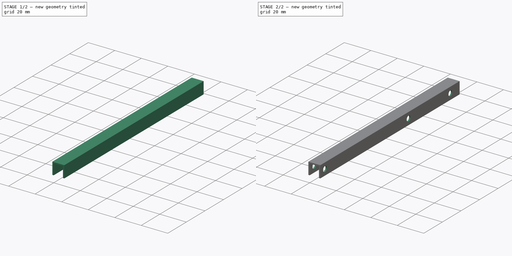
[diagram: build sequence overview — one tinted view per stage of 2, left to right]
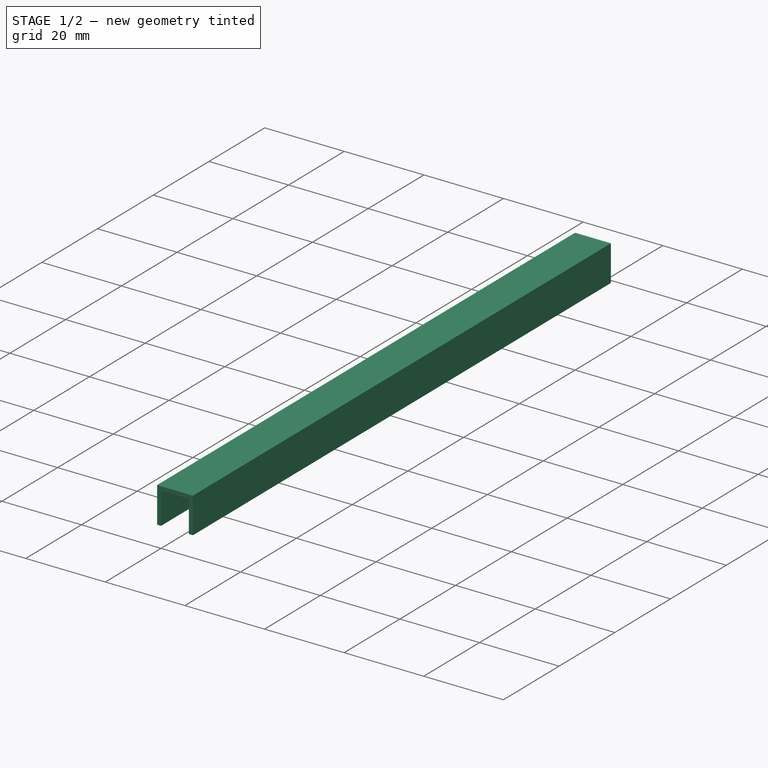
[diagram: stage 1 of 2 — iso view after this stage's code; geometry added in this stage tinted green]
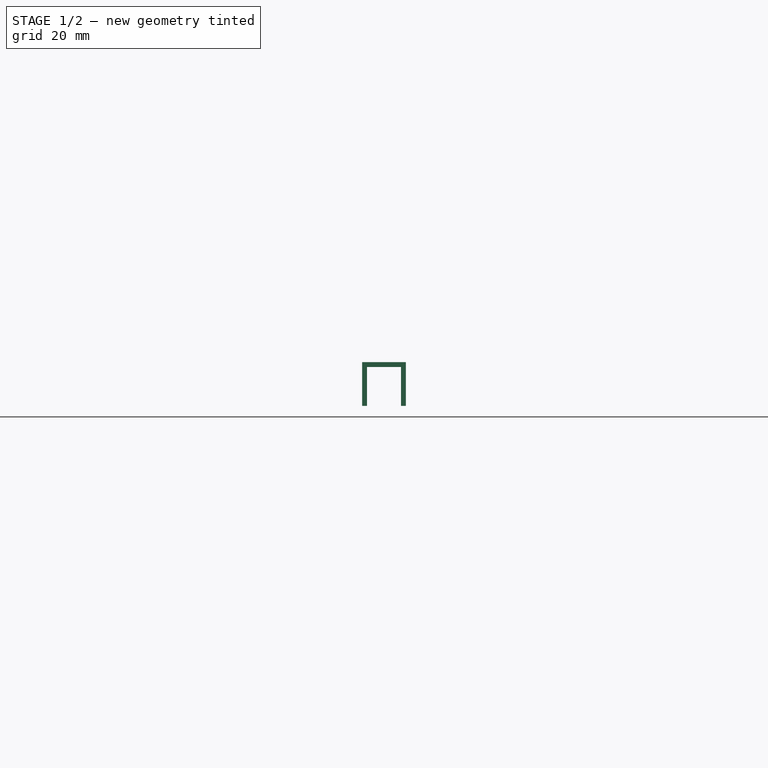
[diagram: stage 1 of 2 — front view after this stage's code; geometry added in this stage tinted green]
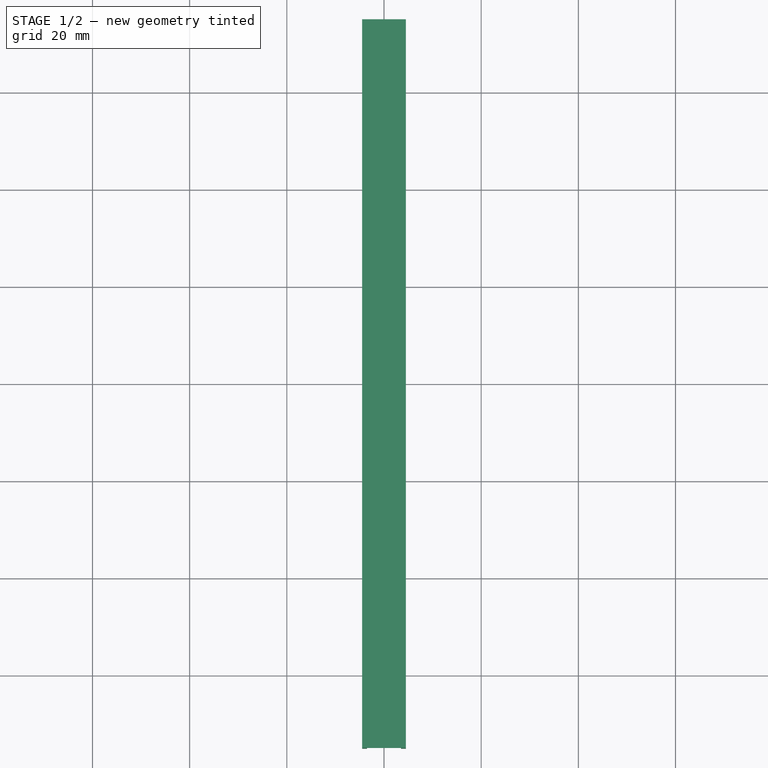
[diagram: stage 1 of 2 — top view after this stage's code; geometry added in this stage tinted green]
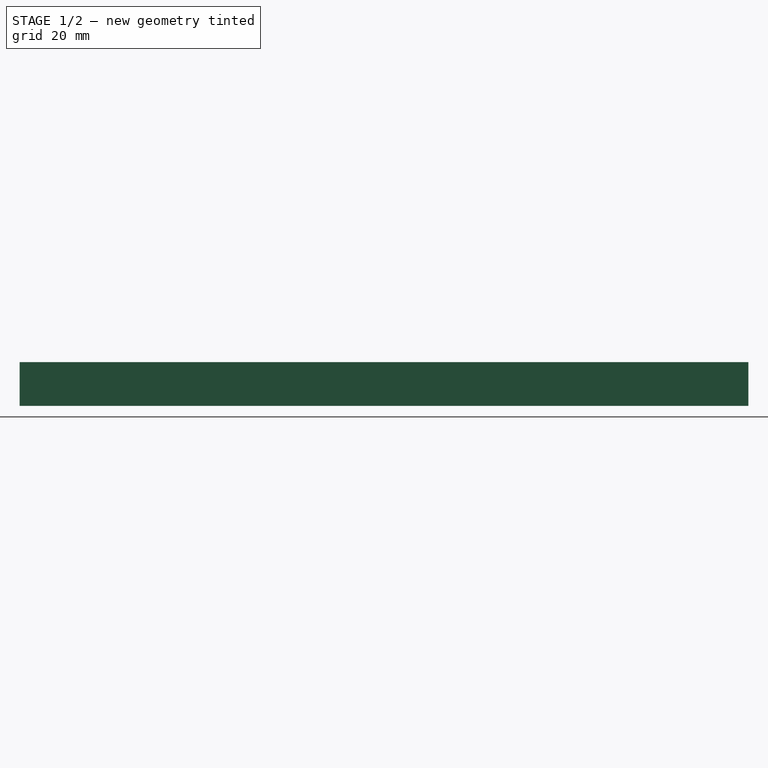
[diagram: stage 1 of 2 — right view after this stage's code; geometry added in this stage tinted green]
FCSTD DOCUMENT  (FreeCAD 0.15R4671 (Git))
Label: SuspensionWheelConnection
License: All rights reserved
LicenseURL: http://en.wikipedia.org/wiki/All_rights_reserved
objects: Drawing::FeatureViewPart×4, Sketcher::SketchObject×2, PartDesign::Pad×1, PartDesign::Pocket×1, Drawing::FeaturePage×1
note: 6 computed .brp shape members not serialized (recipe doc carries the construction recipe); baked Part::Feature solids carry a one-line shape summary decoded from their .brp

FEATURE [Sketcher::SketchObject] Sketch
  Placement = pos=(0,0,0) rot=(1,0,0;1.5708rad)
  sketch-geometry (8):
    g0: LineSegment StartX=-3.5 StartY=0 StartZ=0 EndX=-3.5 EndY=8 EndZ=0
    g1: LineSegment StartX=-3.5 StartY=8 StartZ=0 EndX=3.5 EndY=8 EndZ=0
    g2: LineSegment StartX=3.5 StartY=8 StartZ=0 EndX=3.5 EndY=0 EndZ=0
    g3: LineSegment StartX=3.5 StartY=0 StartZ=0 EndX=4.5 EndY=0 EndZ=0
    g4: LineSegment StartX=4.5 StartY=0 StartZ=0 EndX=4.5 EndY=9 EndZ=0
    g5: LineSegment StartX=4.5 StartY=9 StartZ=0 EndX=-4.5 EndY=9 EndZ=0
    g6: LineSegment StartX=-4.5 StartY=9 StartZ=0 EndX=-4.5 EndY=0 EndZ=0
    g7: LineSegment StartX=-4.5 StartY=0 StartZ=0 EndX=-3.5 EndY=0 EndZ=0
  constraints (24):
    c: Vertical(g0)
    c: Coincident(g0,g1)
    c: Coincident(g1,g2)
    c: Vertical(g2)
    c: Coincident(g2,g3)
    c: Coincident(g3,g4)
    c: Coincident(g4,g5)
    c: Coincident(g5,g6)
    c: Vertical(g6)
    c: PointOnObject(g3,g-1)
    c: PointOnObject(g2,g-1)
    c: PointOnObject(g7,g-1)
    c: PointOnObject(g7,g-1)
    c: Coincident(g6,g7)
    c: Coincident(g7,g0)
    c: Equal(g7,g3)
    c: Equal(g6,g4)
    c: Symmetric(g4,g5,g-2)
    c: Horizontal(g5)
    c: Horizontal(g1)
    c: DistanceY(g1,g4) = 1
    c: DistanceX(g3) = 1
    c: DistanceX(g5) = -9
    c: DistanceY(g6) = -9
FEATURE [PartDesign::Pad] Pad
  Length = 150
  Length2 = 100
  Midplane = true
  Placement = pos=(0,0,0) rot=(1,0,0;1.5708rad)
  Sketch = -> Sketch
  Type = 0
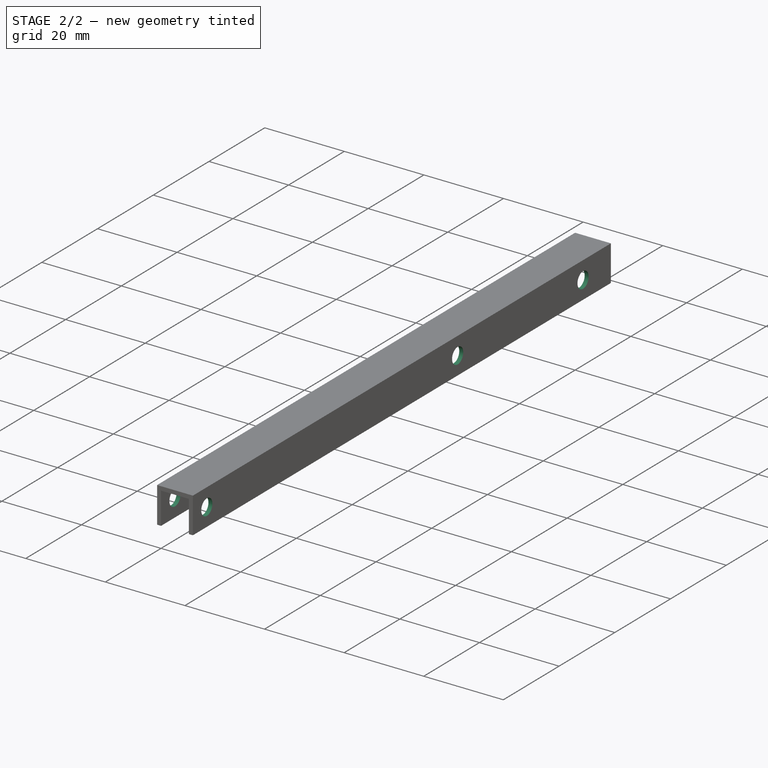
[diagram: stage 2 of 2 — iso view after this stage's code; geometry added in this stage tinted green]
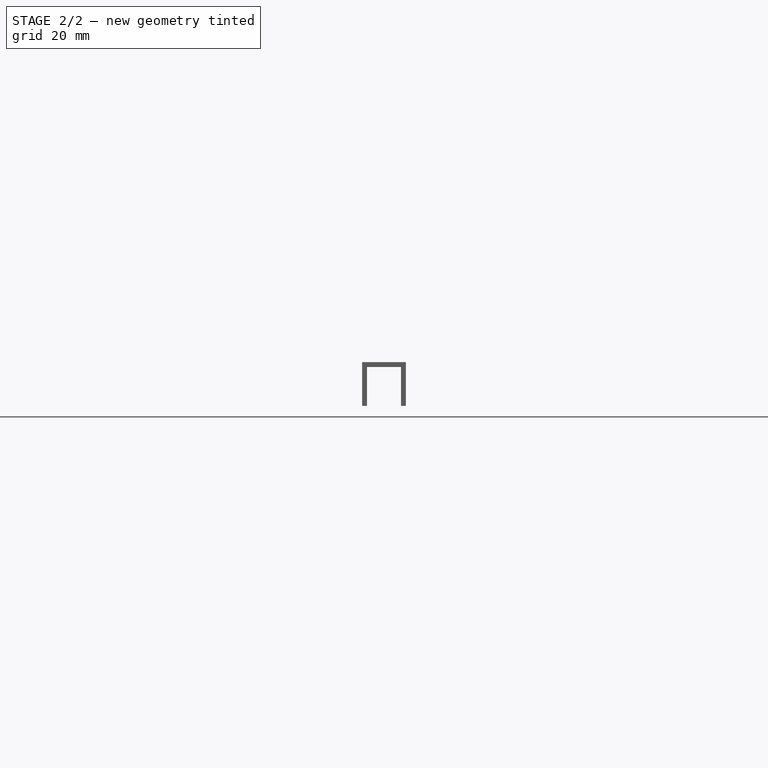
[diagram: stage 2 of 2 — front view after this stage's code; geometry added in this stage tinted green]
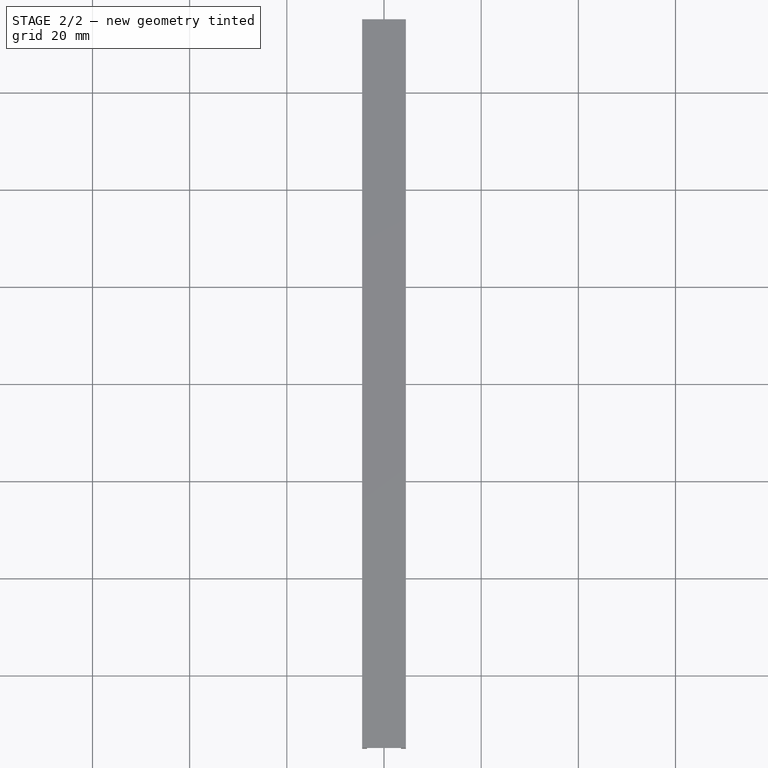
[diagram: stage 2 of 2 — top view after this stage's code; geometry added in this stage tinted green]
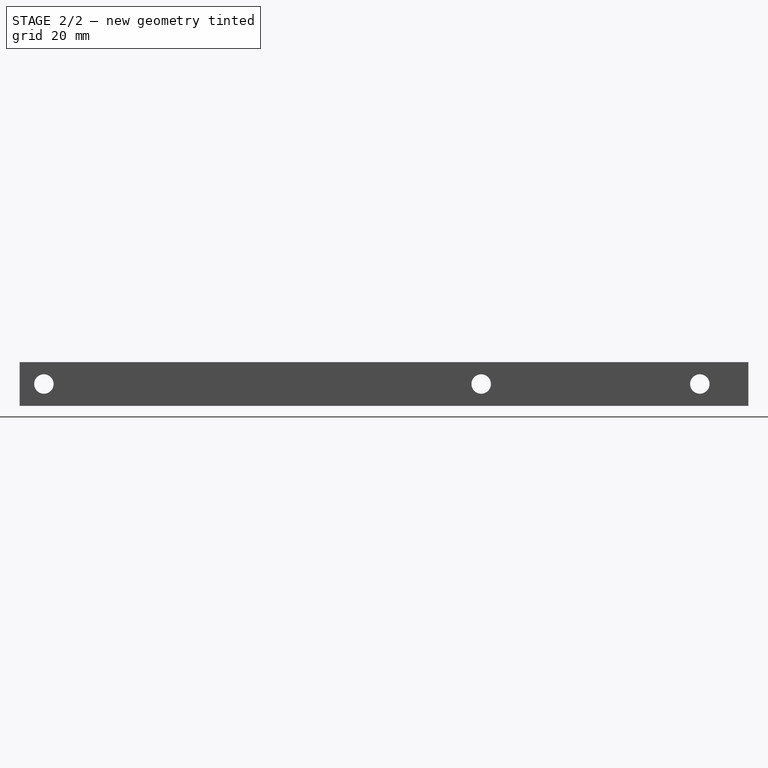
[diagram: stage 2 of 2 — right view after this stage's code; geometry added in this stage tinted green]
FEATURE [Sketcher::SketchObject] Sketch001
  Placement = pos=(4.5,0,0) rot=(0.707107,0,0.707107;3.14159rad)
  Support = -> Pad [Face5]
  sketch-geometry (3):
    g0: Circle CenterX=4.5 CenterY=70 CenterZ=0 NormalX=0 NormalY=0 NormalZ=1 Radius=2
    g1: Circle CenterX=4.5 CenterY=-65 CenterZ=0 NormalX=0 NormalY=0 NormalZ=1 Radius=2
    g2: Circle CenterX=4.5 CenterY=-20 CenterZ=0 NormalX=0 NormalY=0 NormalZ=1 Radius=2
  constraints (9):
    c: DistanceY(g-1,g0) = 70
    c: Radius(g0) = 2
    c: DistanceX(g-1,g0) = 4.5
    c: DistanceY(g-1,g1) = -65
    c: DistanceX(g-1,g1) = 4.5
    c: Equal(g1,g0)
    c: Equal(g2,g1)
    c: DistanceX(g-1,g2) = 4.5
    c: DistanceY(g2,g1) = -45
FEATURE [PartDesign::Pocket] Pocket  label="ConnectionWheelSuspension"
  Length = 5
  Placement = pos=(0,0,0) rot=(1,0,0;1.5708rad)
  Sketch = -> Sketch001
  Type = 1
FEATURE [Drawing::FeatureViewPart] Ortho  label="Ortho_0_0"
  Direction = (1,0,0)
  HiddenWidth = 0.15
  LineWidth = 0.35
  Rotation = -90
  ShowHiddenLines = false
  ShowSmoothLines = false
  Source = -> Pocket
  Tolerance = 0.05
  ViewResult = <g id="Ortho_0_0"\n   transform="rotate(-90,131,110) translate(131,110) scale(1,1)"\n  >\n<g   stroke="rgb(0, 0, 0)"\n   stroke-width="0.35"\n   stroke-linecap="butt"\n   stroke-linejoin="miter"\n   fill="none"\n   transform="scale(1,-1)"\n  >\n<path id= "1" d=" M -6.66134e-14 -75 L 6.66134e-14 75 " />\n<path id= "2" d=" M 6.66134e-14 75 L 8 75 " />\n<circle cx ="4.5" cy ="-20" r ="2" /><path id= "4" d=" M -6.66134e-14 -75 L 9 -75 " />\n<path id= "5" d=" M 6.66134e-14 75 L 9 75 " />\n<path id= "6" d=" M -6.66134e-14 -75 L 6.66134e-14 75 " />\n<path id= "7" d=" M 9 -75 L 9 75 " />\n<circle cx ="4.5" cy ="-65" r ="2" /><circle cx ="4.5" cy ="-20" r ="2" /><circle cx ="4.5" cy ="70" r ="2" /></g>\n</g>
  Visible = true
  X = 131
  Y = 110
FEATURE [Drawing::FeatureViewPart] Ortho001  label="Ortho_1_0"
  Direction = (0,1,0)
  HiddenWidth = 0.15
  LineWidth = 0.35
  Rotation = -90
  ShowHiddenLines = false
  ShowSmoothLines = false
  Source = -> Pocket
  Tolerance = 0.05
  ViewResult = <g id="Ortho_1_0"\n   transform="rotate(-90,246.5,110) translate(246.5,110) scale(1,1)"\n  >\n<g   stroke="rgb(0, 0, 0)"\n   stroke-width="0.35"\n   stroke-linecap="butt"\n   stroke-linejoin="miter"\n   fill="none"\n   transform="scale(1,-1)"\n  >\n<path id= "1" d=" M -6.66134e-14 -3.5 L 8 -3.5 " />\n<path id= "2" d=" M -6.66134e-14 -4.5 L -6.66134e-14 -3.5 " />\n<path id= "3" d=" M 8 -3.5 L 8 3.5 " />\n<path id= "4" d=" M 8 3.5 L -6.66134e-14 3.5 " />\n<path id= "5" d=" M -6.66134e-14 3.5 L -6.66134e-14 4.5 " />\n<path id= "6" d=" M -6.66134e-14 4.5 L 9 4.5 " />\n<path id= "7" d=" M 9 4.5 L 9 -4.5 " />\n<path id= "8" d=" M 9 -4.5 L -6.57252e-14 -4.5 " />\n<path d="M2.5,-4.5 L2.55014,-4.5  L2.69806,-4.5  L2.93634,-4.5  L3.25302,-4.5  L3.63223,-4.5  L4.05496,-4.5  L4.5,-4.5  L4.94504,-4.5  L5.36777,-4.5  L5.74698,-4.5  L6.06366,-4.5  L6.30194,-4.5  L6.44986,-4.5  L6.5,-4.5 " /></g>\n</g>
  Visible = true
  X = 246.5
  Y = 110
FEATURE [Drawing::FeatureViewPart] Ortho002  label="Ortho_1_1"
  Direction = (0.57735,0.57735,0.57735)
  HiddenWidth = 0.15
  LineWidth = 0.35
  Rotation = 120
  ShowHiddenLines = false
  ShowSmoothLines = false
  Source = -> Pocket
  Tolerance = 0.05
  ViewResult = <g id="Ortho_1_1"\n   transform="rotate(120,150,55) translate(150,55) scale(1,1)"\n  >\n<g   stroke="rgb(0, 0, 0)"\n   stroke-width="0.35"\n   stroke-linecap="butt"\n   stroke-linejoin="miter"\n   fill="none"\n   transform="scale(1,-1)"\n  >\n<path id= "1" d=" M -2.47487 62.6661 L -2.47487 56.9506 " />\n<path id= "2" d=" M -2.47487 62.6661 L -8.13173 59.4001 " />\n<path id= "3" d=" M -3.18198 63.0744 L -2.47487 62.6661 " />\n<path id= "4" d=" M -8.13173 59.4001 L -3.18198 56.5424 " />\n<path id= "5" d=" M -3.18198 56.5424 L 2.47487 59.8084 " />\n<path id= "6" d=" M 2.47487 59.8084 L 3.18198 59.4001 " />\n<path id= "7" d=" M 3.18198 59.4001 L -3.18198 55.7259 " />\n<path id= "8" d=" M -3.18198 55.7259 L -9.54594 59.4001 " />\n<path id= "9" d=" M -9.54594 59.4001 L -3.18198 63.0744 " />\n<path id= "10" d=" M 3.18198 -63.0744 L -3.18198 -66.7486 " />\n<path id= "11" d=" M -3.18198 -66.7486 L -9.54594 -63.0744 " />\n<path id= "12" d=" M -9.54594 59.4001 L -9.54594 -63.0744 " />\n<path d="M-1.28897 47.982 A2 1.1547 -120 0 1 0.581861 51.2224" />\n<path d="M-1.28897 11.2396 A2 1.1547 -120 0 1 0.581861 14.48" />\n<path d="M-1.28897 -62.2451 A2 1.1547 -120 0 1 0.581861 -59.0047" />\n<path id= "16" d=" M 3.18198 59.4001 L 3.18198 -63.0744 " />\n<path id= "17" d=" M -3.18198 55.7259 L -3.18198 -66.7486 " />\n<path d="M-1.41421 48.5815 A2 1.1547 -120 0 1 -1 47.666" />\n<path d="M-1 47.666 A2 1.1547 -120 0 1 1 51.1301" />\n<path d="M1 51.1301 A2 1.1547 -120 0 1 -1.41421 48.5815" />\n<path d="M-1.41421 11.8392 A2 1.1547 -120 0 1 -1 10.9236" />\n<path d="M-1 10.9236 A2 1.1547 -120 0 1 1 14.3877" />\n<path d="M1 14.3877 A2 1.1547 -120 0 1 -1.41421 11.8392" />\n<path d="M-1.41421 -61.6455 A2 1.1547 -120 0 1 -1 -62.561" />\n<path d="M-1 -62.561 A2 1.1547 -120 0 1 1 -59.0969" />\n<path d="M1 -59.0969 A2 1.1547 -120 0 1 -1.41421 -61.6455" />\n</g>\n</g>
  Visible = true
  X = 150
  Y = 55
FEATURE [Drawing::FeatureViewPart] Ortho003  label="Ortho_0_-1"
  Direction = (0,0,-1)
  HiddenWidth = 0.15
  LineWidth = 0.35
  Rotation = 90
  ShowHiddenLines = false
  ShowSmoothLines = false
  Source = -> Pocket
  Tolerance = 0.05
  ViewResult = <blob: 2630 chars omitted>
  Visible = true
  X = 131
  Y = 150
FEATURE [Drawing::FeaturePage] Page
  EditableTexts = Siqueira | Siqueira | Pindí | Drawing | Connection | 0007 | 2015-06-21
  Group = -> [Ortho,Ortho001,Ortho002,Ortho003]
  Template = <path>
note: 1 file-system path scrubbed to <path> (originals preserved in the JSON sidecar)
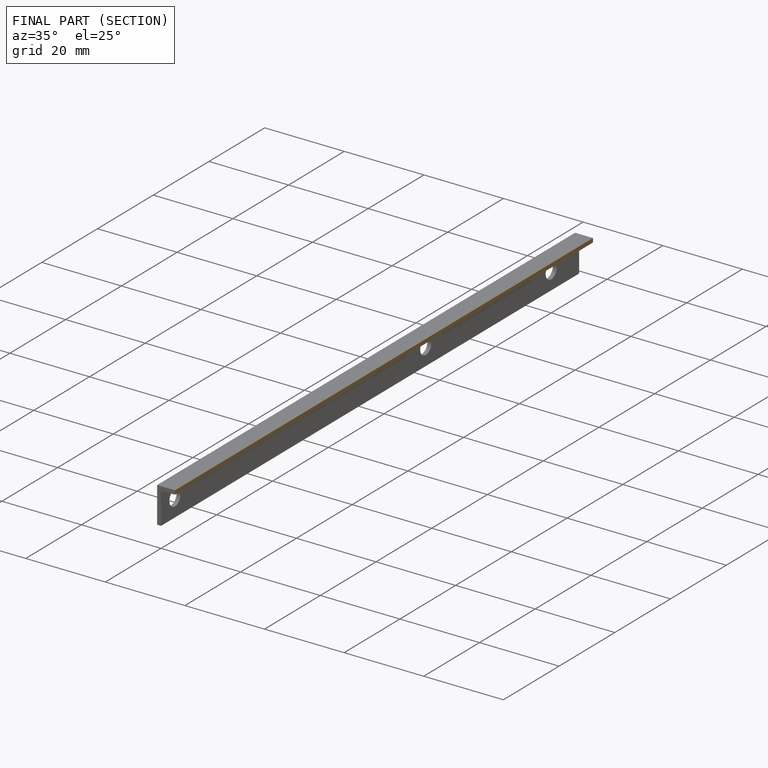
[diagram: finished part — half-section view (interior)]
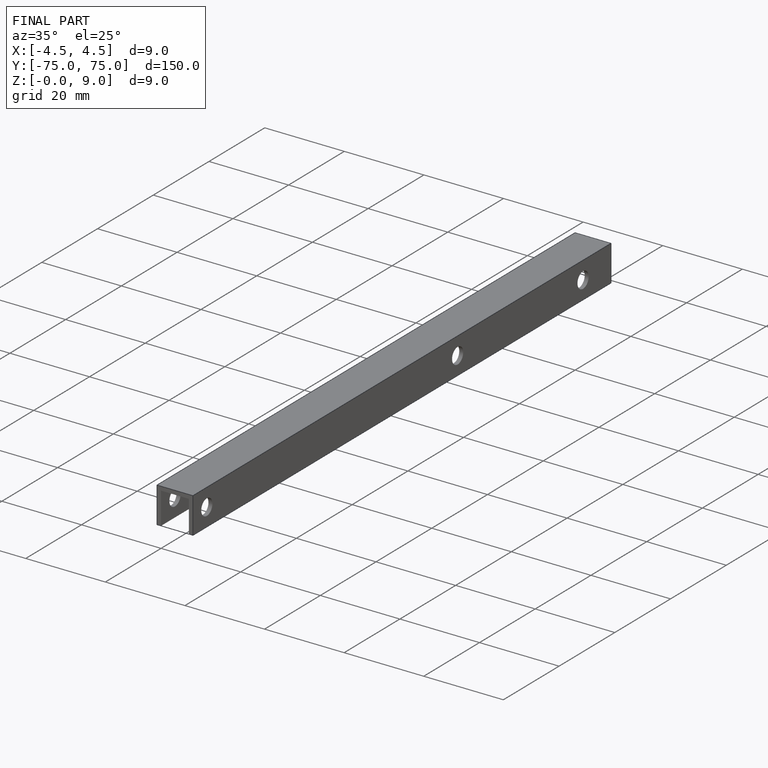
[diagram: finished part — iso view with bounding-box wireframe]
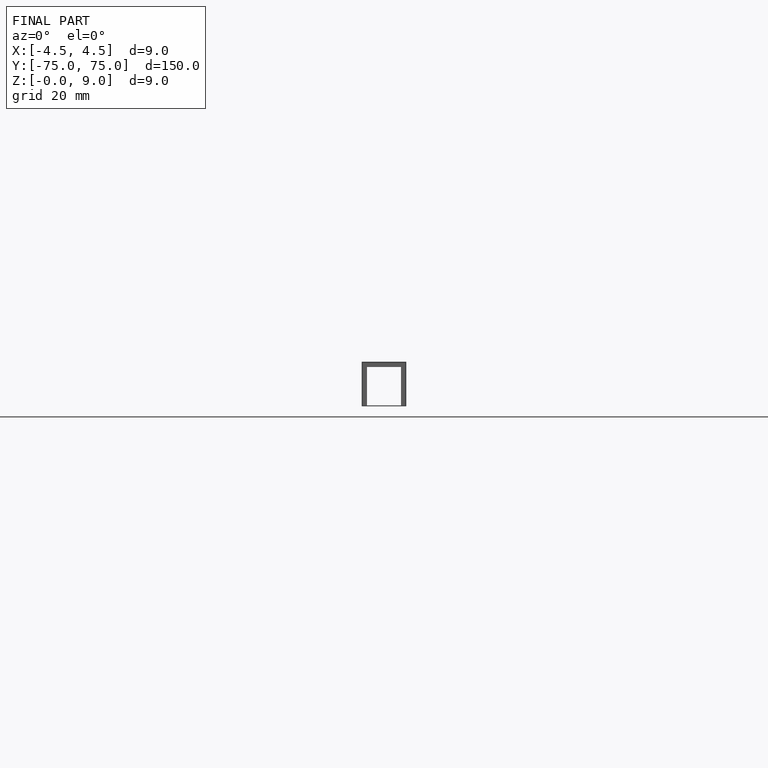
[diagram: finished part — front view with bounding-box wireframe]
